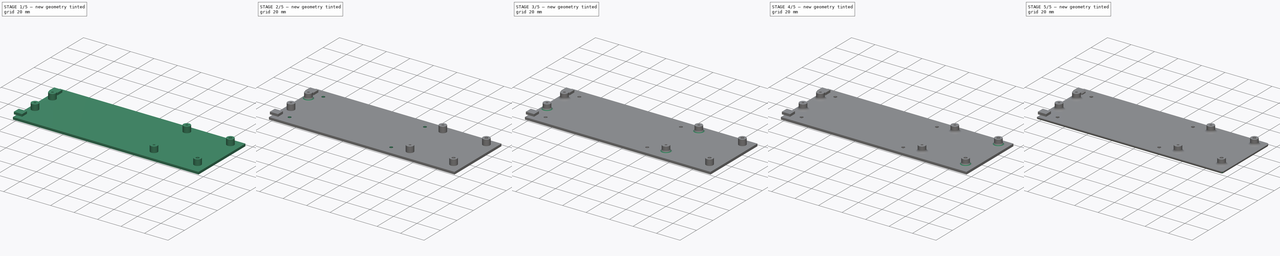
[diagram: build sequence overview — one tinted view per stage of 5, left to right]
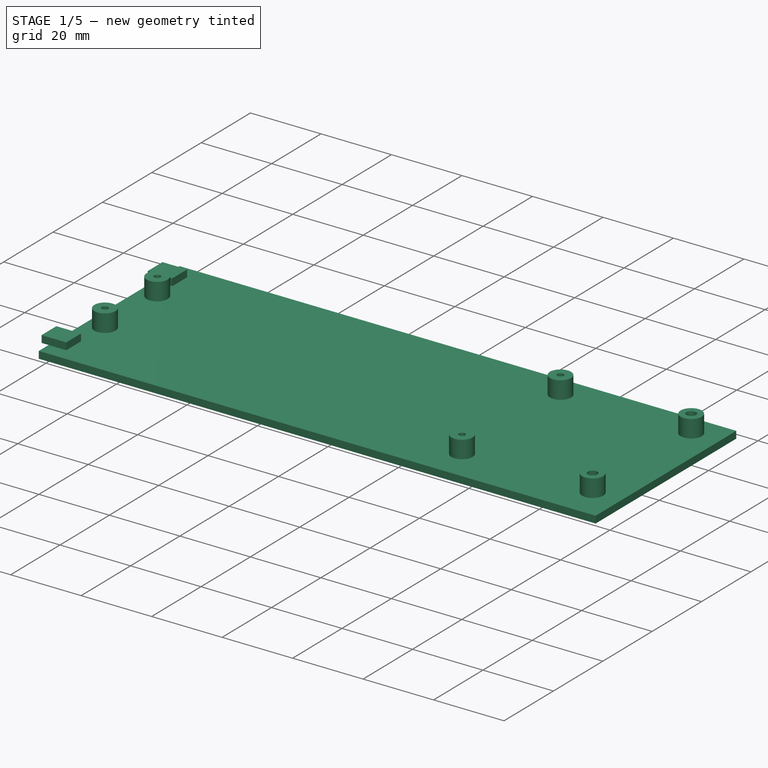
[diagram: stage 1 of 5 — iso view after this stage's code; geometry added in this stage tinted green]
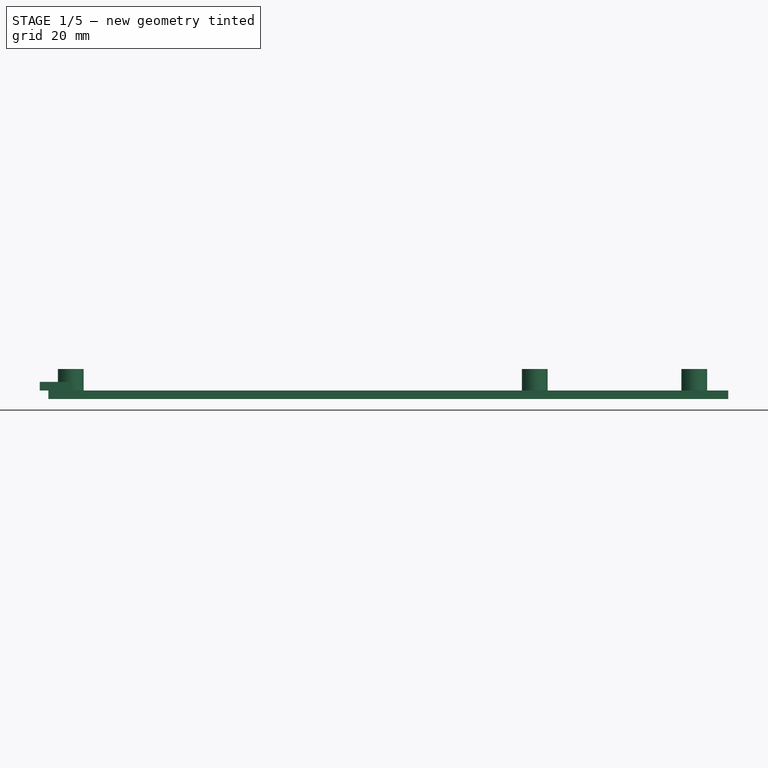
[diagram: stage 1 of 5 — front view after this stage's code; geometry added in this stage tinted green]
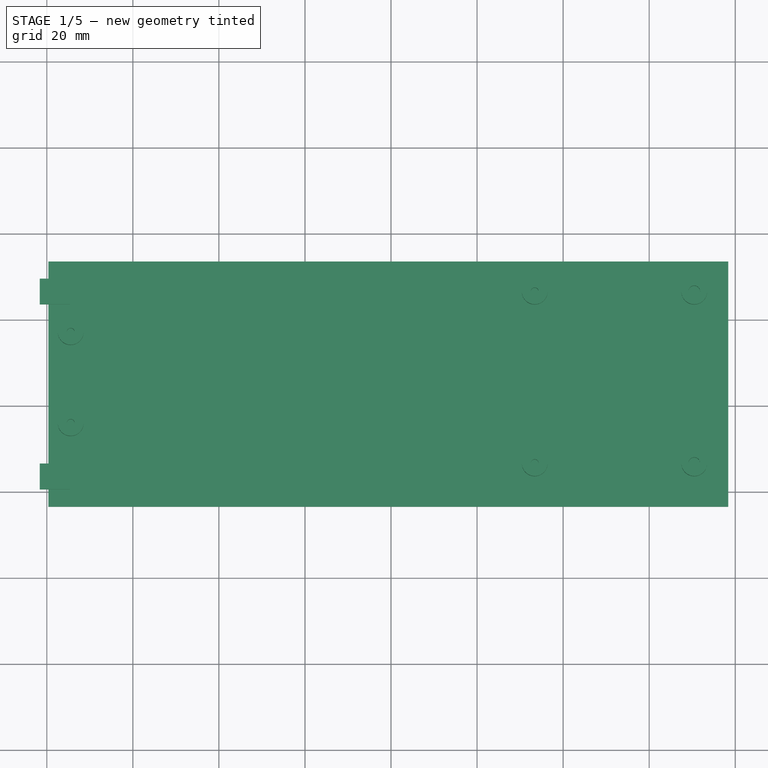
[diagram: stage 1 of 5 — top view after this stage's code; geometry added in this stage tinted green]
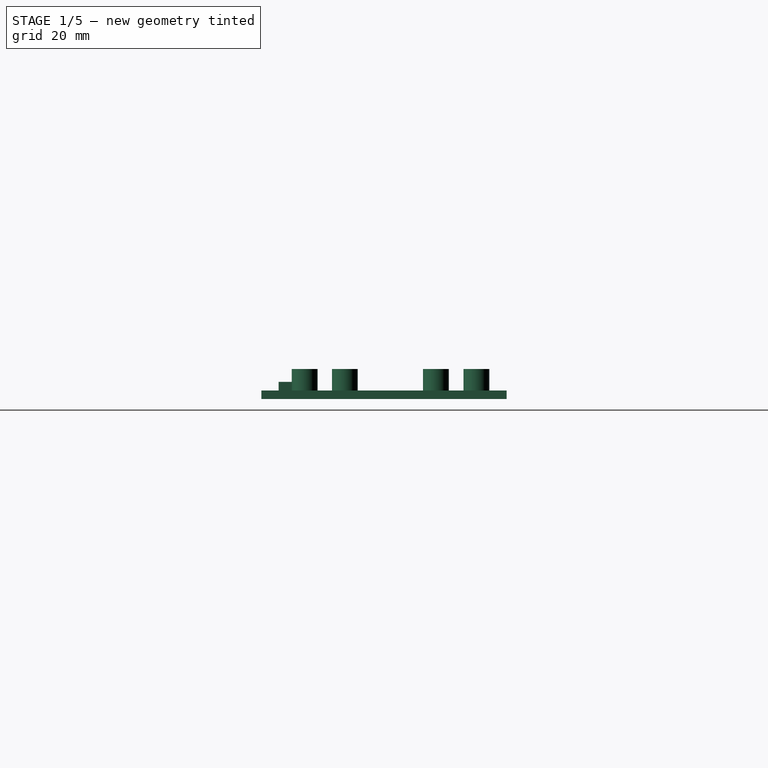
[diagram: stage 1 of 5 — right view after this stage's code; geometry added in this stage tinted green]
FCSTD DOCUMENT  (FreeCAD 0.15R4671 (Git))
Label: bottom_part
License: All rights reserved
LicenseURL: http://en.wikipedia.org/wiki/All_rights_reserved
objects: PartDesign::Fillet×8, Sketcher::SketchObject×5, PartDesign::Pad×3, PartDesign::Pocket×2, PartDesign::Chamfer×2, Part::Feature×1
note: 26 computed .brp shape members not serialized (recipe doc carries the construction recipe); baked Part::Feature solids carry a one-line shape summary decoded from their .brp

FEATURE [Sketcher::SketchObject] Sketch
  sketch-geometry (4):
    g0: LineSegment StartX=-79.6316 StartY=13.5638 StartZ=0 EndX=78.3684 EndY=13.5638 EndZ=0
    g1: LineSegment StartX=78.3684 StartY=13.5638 StartZ=0 EndX=78.3684 EndY=-43.4362 EndZ=0
    g2: LineSegment StartX=78.3684 StartY=-43.4362 StartZ=0 EndX=-79.6316 EndY=-43.4362 EndZ=0
    g3: LineSegment StartX=-79.6316 StartY=-43.4362 StartZ=0 EndX=-79.6316 EndY=13.5638 EndZ=0
  constraints (10):
    c: Coincident(g0,g1)
    c: Coincident(g1,g2)
    c: Coincident(g2,g3)
    c: Coincident(g3,g0)
    c: Horizontal(g0)
    c: Horizontal(g2)
    c: Vertical(g1)
    c: Vertical(g3)
    c: Distance(g0) = 158
    c: Distance(g3) = 57
FEATURE [PartDesign::Pad] Pad
  Length = 2
  Length2 = 100
  Sketch = -> Sketch
  Type = 0
FEATURE [Sketcher::SketchObject] Sketch001
  ExternalGeometry = -> [Pad]
  Placement = pos=(0,0,2) rot=(0,0,1;0rad)
  Support = -> Pad [Face6]
  sketch-geometry (8):
    g0: LineSegment StartX=-81.6316 StartY=9.56382 StartZ=0 EndX=-74.6316 EndY=9.56382 EndZ=0
    g1: LineSegment StartX=-74.6316 StartY=9.56382 StartZ=0 EndX=-74.6316 EndY=3.56382 EndZ=0
    g2: LineSegment StartX=-74.6316 StartY=3.56382 StartZ=0 EndX=-81.6316 EndY=3.56382 EndZ=0
    g3: LineSegment StartX=-81.6316 StartY=3.56382 StartZ=0 EndX=-81.6316 EndY=9.56382 EndZ=0
    g4: LineSegment StartX=-81.6316 StartY=-33.4362 StartZ=0 EndX=-74.6316 EndY=-33.4362 EndZ=0
    g5: LineSegment StartX=-74.6316 StartY=-33.4362 StartZ=0 EndX=-74.6316 EndY=-39.4362 EndZ=0
    g6: LineSegment StartX=-74.6316 StartY=-39.4362 StartZ=0 EndX=-81.6316 EndY=-39.4362 EndZ=0
    g7: LineSegment StartX=-81.6316 StartY=-39.4362 StartZ=0 EndX=-81.6316 EndY=-33.4362 EndZ=0
  constraints (24):
    c: Coincident(g0,g1)
    c: Coincident(g1,g2)
    c: Coincident(g2,g3)
    c: Coincident(g3,g0)
    c: Horizontal(g0)
    c: Horizontal(g2)
    c: Vertical(g1)
    c: Vertical(g3)
    c: Distance(g0) = 7
    c: DistanceX(g0,g-4) = 2
    c: DistanceY(g0,g-4) = 4
    c: Distance(g1) = 6
    c: Coincident(g4,g5)
    c: Coincident(g5,g6)
    c: Coincident(g6,g7)
    c: Coincident(g7,g4)
    c: Horizontal(g4)
    c: Horizontal(g6)
    c: Vertical(g5)
    c: Vertical(g7)
    c: Distance(g5) = 6
    c: Distance(g4) = 7
    c: DistanceX(g6,g-5) = 2
    c: DistanceY(g6,g-5) = -4
FEATURE [PartDesign::Pad] Pad001
  Length = 2
  Length2 = 100
  Sketch = -> Sketch001
  Type = 0
FEATURE [Sketcher::SketchObject] Sketch002
  ExternalGeometry = -> [Pad001]
  Placement = pos=(0,0,2) rot=(0,0,1;0rad)
  Support = -> Pad001 [Face5]
  sketch-geometry (12):
    g0: Circle CenterX=70.4784 CenterY=6.54882 CenterZ=0 NormalX=0 NormalY=0 NormalZ=1 Radius=1.35
    g1: Circle CenterX=70.4784 CenterY=-33.3712 CenterZ=0 NormalX=0 NormalY=0 NormalZ=1 Radius=1.35
    g2: Circle CenterX=33.3984 CenterY=6.54882 CenterZ=0 NormalX=0 NormalY=0 NormalZ=1 Radius=0.9
    g3: Circle CenterX=33.3984 CenterY=-33.3712 CenterZ=0 NormalX=0 NormalY=0 NormalZ=1 Radius=0.9
    g4: Circle CenterX=70.4784 CenterY=6.54882 CenterZ=0 NormalX=0 NormalY=0 NormalZ=1 Radius=3
    g5: Circle CenterX=33.3984 CenterY=6.54882 CenterZ=0 NormalX=0 NormalY=0 NormalZ=1 Radius=3
    g6: Circle CenterX=33.3984 CenterY=-33.3712 CenterZ=0 NormalX=0 NormalY=0 NormalZ=1 Radius=3
    g7: Circle CenterX=70.4784 CenterY=-33.3712 CenterZ=0 NormalX=0 NormalY=0 NormalZ=1 Radius=3
    g8: Circle CenterX=-74.4416 CenterY=-2.86118 CenterZ=0 NormalX=0 NormalY=0 NormalZ=1 Radius=0.9
    g9: Circle CenterX=-74.4416 CenterY=-24.0312 CenterZ=0 NormalX=0 NormalY=0 NormalZ=1 Radius=0.9
    g10: Circle CenterX=-74.4416 CenterY=-2.86118 CenterZ=0 NormalX=0 NormalY=0 NormalZ=1 Radius=3
    g11: Circle CenterX=-74.4416 CenterY=-24.0312 CenterZ=0 NormalX=0 NormalY=0 NormalZ=1 Radius=3
  constraints (30):
    c: DistanceY(g0,g-4) = 7.015
    c: DistanceX(g0,g-4) = 7.89
    c: DistanceX(g1,g-5) = 7.89
    c: Radius(g0) = 1.35
    c: Radius(g1) = 1.35
    c: DistanceY(g2,g-4) = 7.015
    c: DistanceX(g2,g0) = 37.08
    c: Radius(g2) = 0.9
    c: DistanceX(g3,g1) = 37.08
    c: Radius(g3) = 0.9
    c: DistanceY(g0,g1) = -39.92
    c: DistanceY(g3,g1) = 0
    c: Coincident(g4,g0)
    c: Radius(g4) = 3
    c: Coincident(g5,g2)
    c: Radius(g5) = 3
    c: Coincident(g6,g3)
    c: Radius(g6) = 3
    c: Coincident(g7,g1)
    c: Radius(g7) = 3
    c: DistanceY(g-3,g8) = -16.425
    c: DistanceX(g8,g-3) = -5.19
    c: Radius(g8) = 0.9
    c: DistanceY(g9,g8) = 21.17
    c: DistanceX(g9,g8) = 0
    c: Radius(g9) = 0.9
    c: Coincident(g10,g8)
    c: Radius(g10) = 3
    c: Coincident(g11,g9)
    c: Radius(g11) = 3
FEATURE [PartDesign::Pad] Pad002
  Length = 5
  Length2 = 100
  Sketch = -> Sketch002
  Type = 0
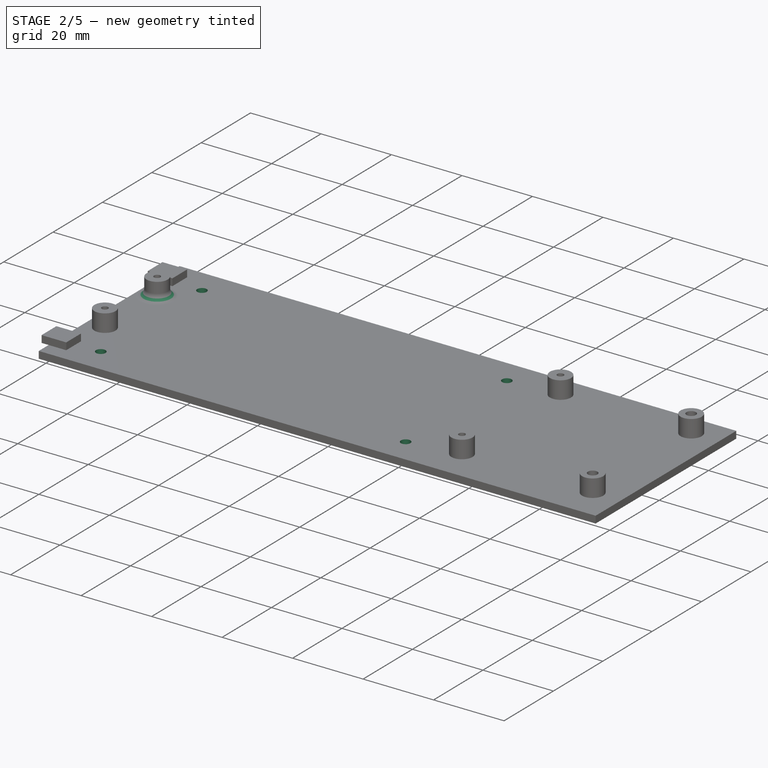
[diagram: stage 2 of 5 — iso view after this stage's code; geometry added in this stage tinted green]
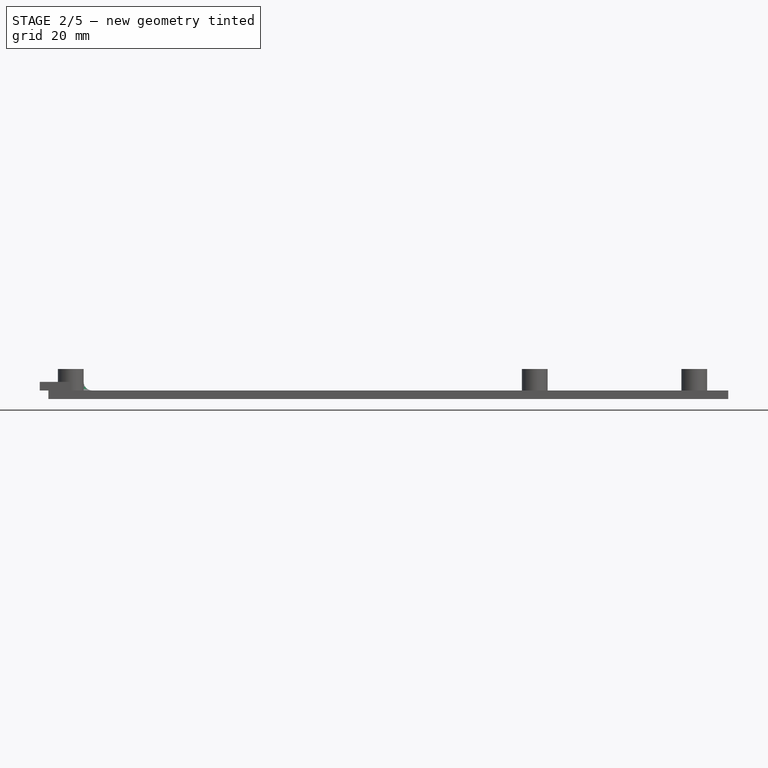
[diagram: stage 2 of 5 — front view after this stage's code; geometry added in this stage tinted green]
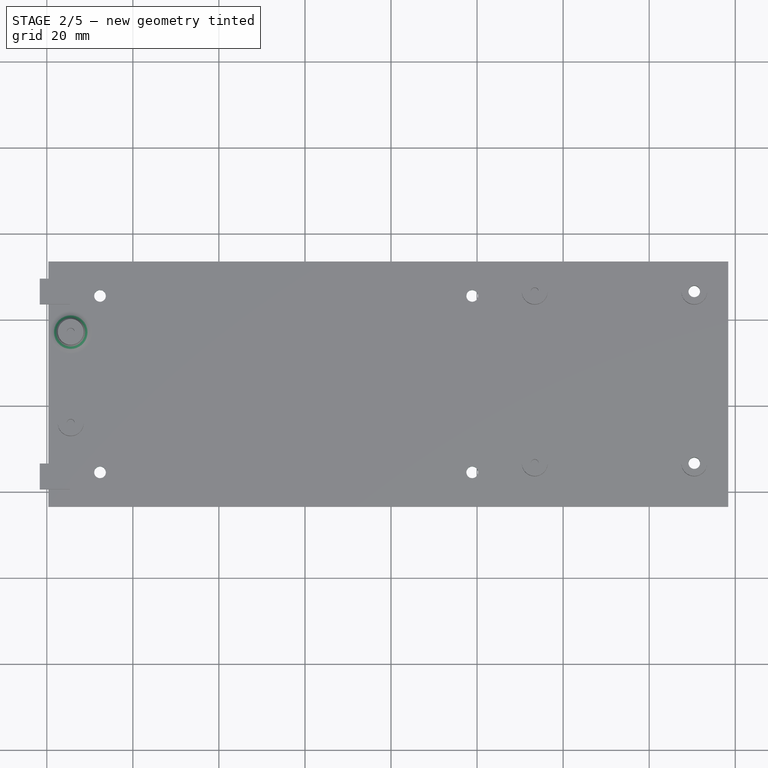
[diagram: stage 2 of 5 — top view after this stage's code; geometry added in this stage tinted green]
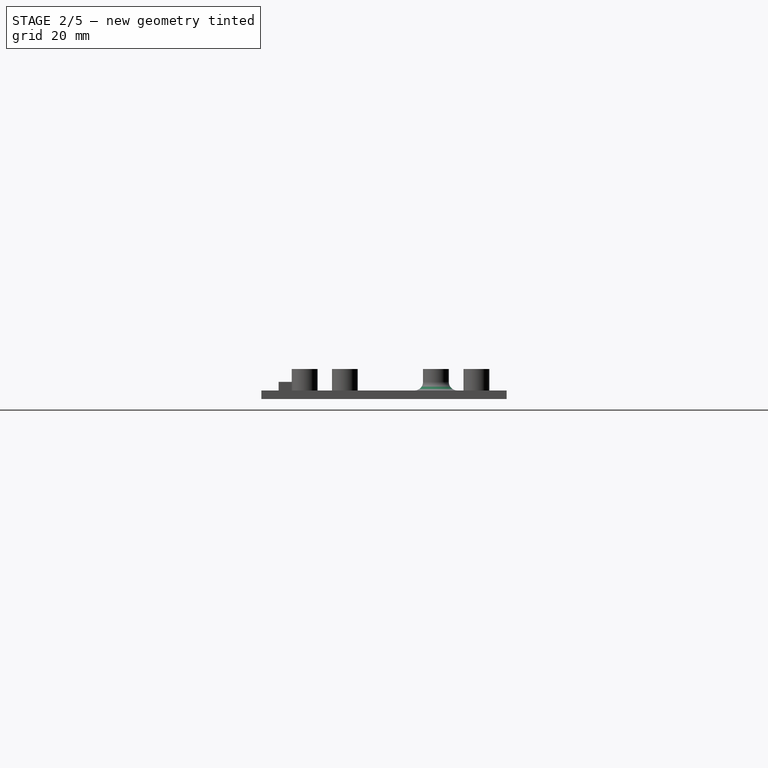
[diagram: stage 2 of 5 — right view after this stage's code; geometry added in this stage tinted green]
FEATURE [Sketcher::SketchObject] Sketch003
  ExternalGeometry = -> [Pad002]
  Placement = pos=(0,0,2) rot=(0,0,1;0rad)
  Support = -> Pad002 [Face5]
  sketch-geometry (4):
    g0: Circle CenterX=-67.6316 CenterY=5.56382 CenterZ=0 NormalX=0 NormalY=0 NormalZ=1 Radius=1.35
    g1: Circle CenterX=18.8684 CenterY=5.56382 CenterZ=0 NormalX=0 NormalY=0 NormalZ=1 Radius=1.35
    g2: Circle CenterX=-67.6316 CenterY=-35.4362 CenterZ=0 NormalX=0 NormalY=0 NormalZ=1 Radius=1.35
    g3: Circle CenterX=18.8684 CenterY=-35.4362 CenterZ=0 NormalX=0 NormalY=0 NormalZ=1 Radius=1.35
  constraints (12):
    c: DistanceX(g0,g-8) = -12
    c: DistanceY(g0,g-8) = 8
    c: Radius(g0) = 1.35
    c: DistanceX(g1,g0) = -86.5
    c: DistanceY(g1,g0) = 0
    c: Radius(g1) = 1.35
    c: DistanceX(g2,g-7) = -12
    c: DistanceY(g2,g-7) = -8
    c: Radius(g2) = 1.35
    c: DistanceX(g3,g2) = -86.5
    c: DistanceY(g3,g2) = 0
    c: Radius(g3) = 1.35
FEATURE [PartDesign::Pocket] Pocket
  Length = 5
  Sketch = -> Sketch003
  Type = 0
FEATURE [Sketcher::SketchObject] Sketch004
  ExternalGeometry = -> [Pocket]
  Placement = pos=(0,0,0) rot=(1,0,0;3.14159rad)
  Support = -> Pocket [Face4]
  sketch-geometry (2):
    g0: Circle CenterX=70.4784 CenterY=33.3712 CenterZ=0 NormalX=0 NormalY=0 NormalZ=1 Radius=1.35
    g1: Circle CenterX=70.4784 CenterY=-6.54882 CenterZ=0 NormalX=0 NormalY=0 NormalZ=1 Radius=1.35
  constraints (6):
    c: DistanceX(g0,g-4) = 7.89
    c: Radius(g0) = 1.35
    c: DistanceY(g1,g0) = 39.92
    c: DistanceX(g1,g0) = 0
    c: Radius(g1) = 1.35
    c: DistanceY(g1,g-5) = -7.015
FEATURE [PartDesign::Pocket] Pocket001
  Length = 5
  Sketch = -> Sketch004
  Type = 0
FEATURE [PartDesign::Fillet] Fillet
  Base = -> Pocket001 [Edge37]
  Radius = 2
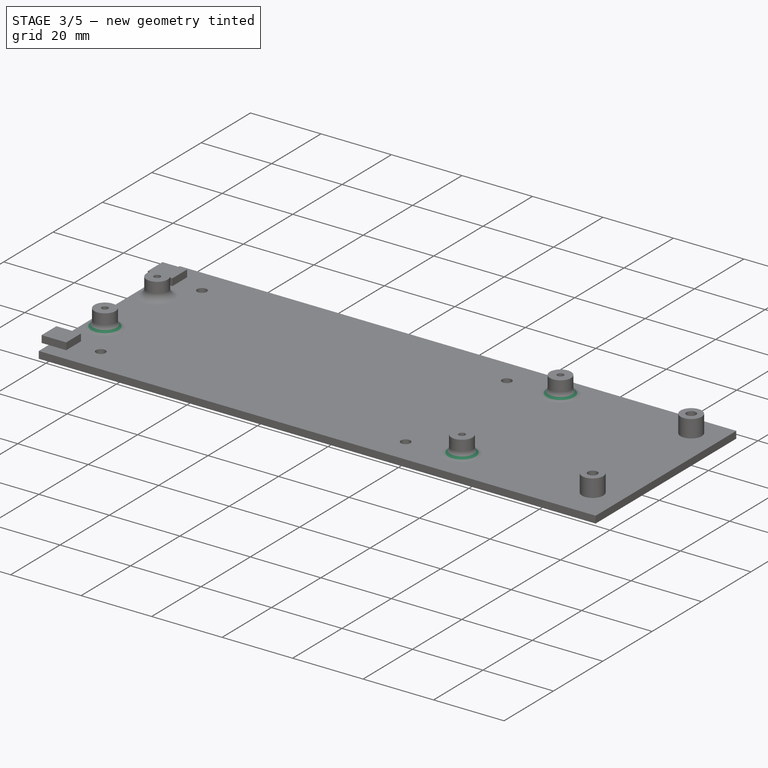
[diagram: stage 3 of 5 — iso view after this stage's code; geometry added in this stage tinted green]
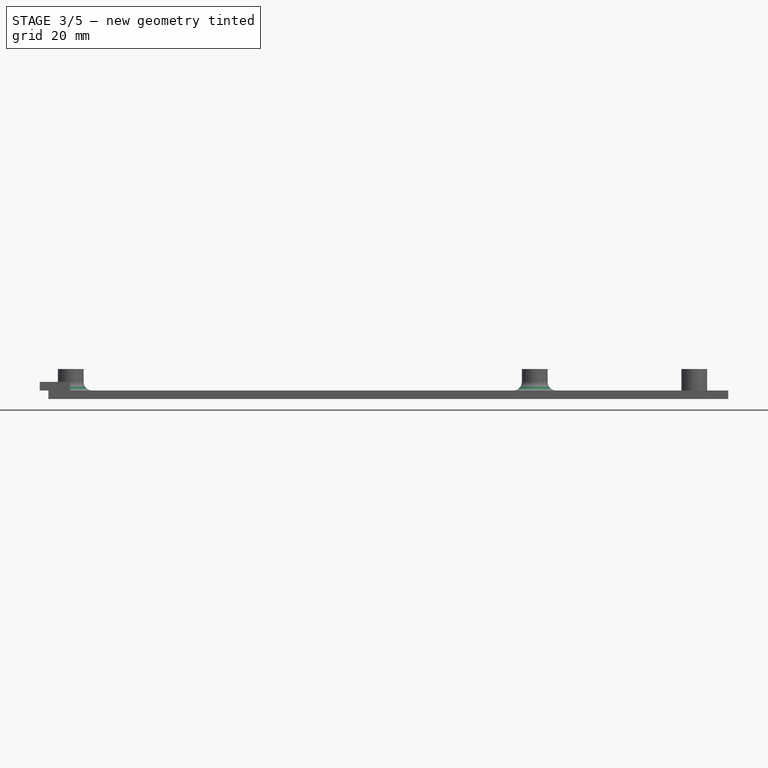
[diagram: stage 3 of 5 — front view after this stage's code; geometry added in this stage tinted green]
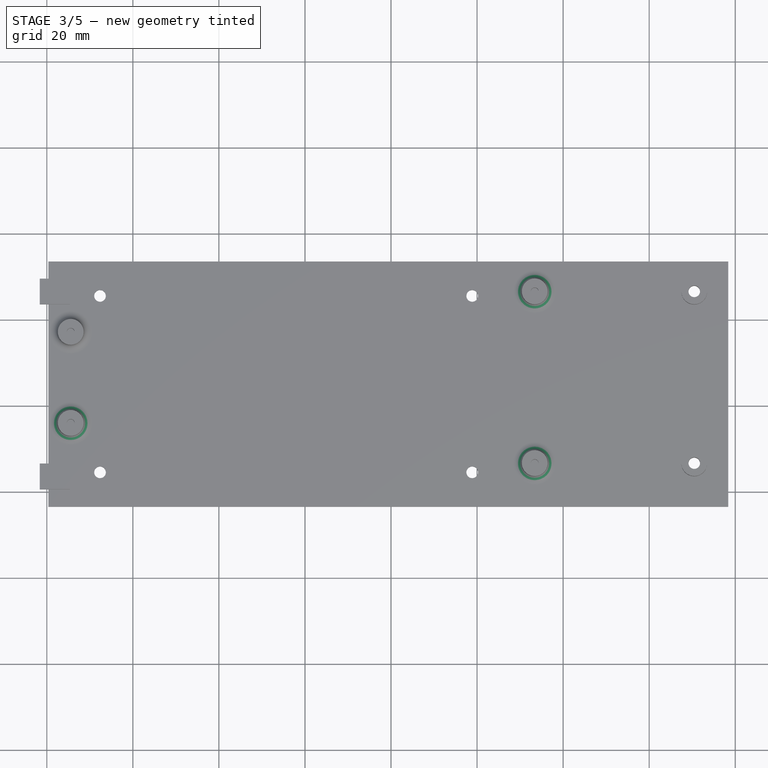
[diagram: stage 3 of 5 — top view after this stage's code; geometry added in this stage tinted green]
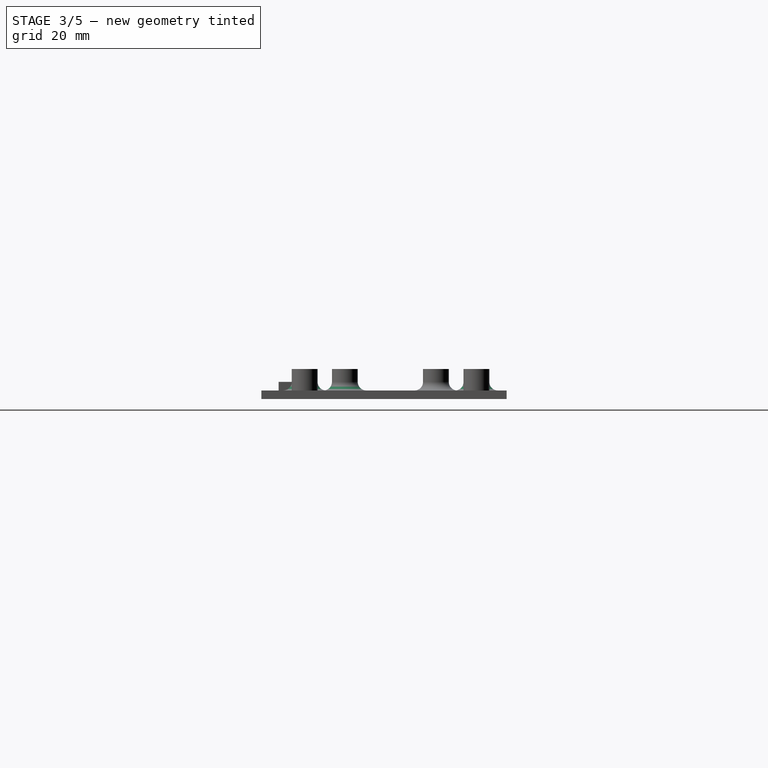
[diagram: stage 3 of 5 — right view after this stage's code; geometry added in this stage tinted green]
FEATURE [PartDesign::Fillet] Fillet001
  Base = -> Fillet [Edge22]
  Radius = 2
FEATURE [PartDesign::Fillet] Fillet002
  Base = -> Fillet001 [Edge19]
  Radius = 2
FEATURE [PartDesign::Fillet] Fillet003
  Base = -> Fillet002 [Edge19]
  Radius = 2
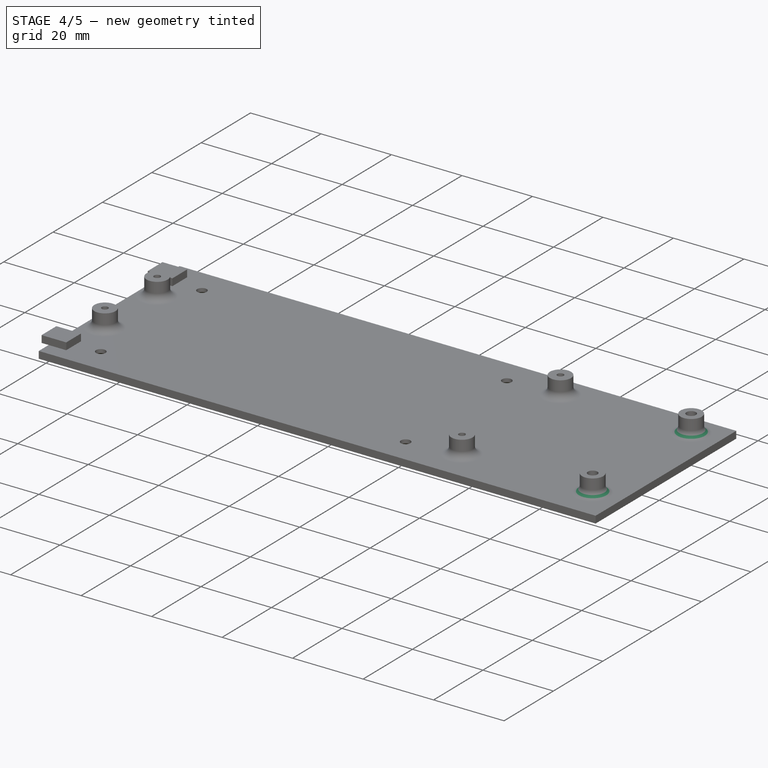
[diagram: stage 4 of 5 — iso view after this stage's code; geometry added in this stage tinted green]
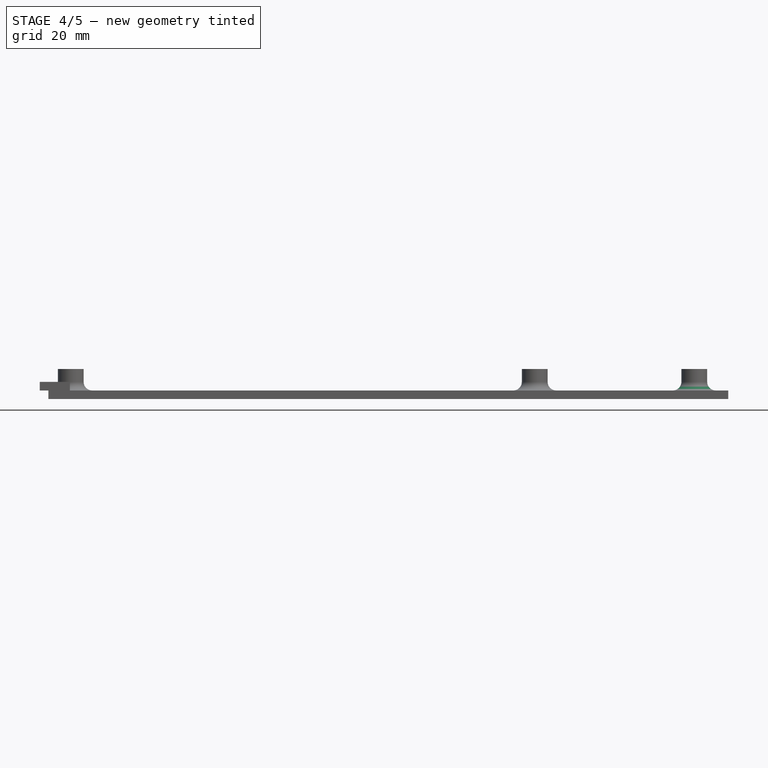
[diagram: stage 4 of 5 — front view after this stage's code; geometry added in this stage tinted green]
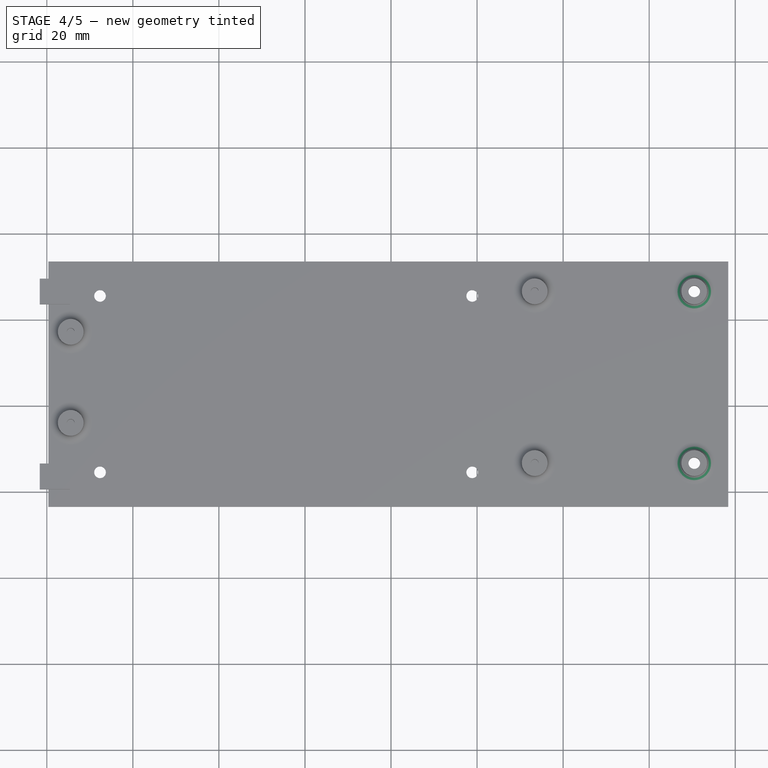
[diagram: stage 4 of 5 — top view after this stage's code; geometry added in this stage tinted green]
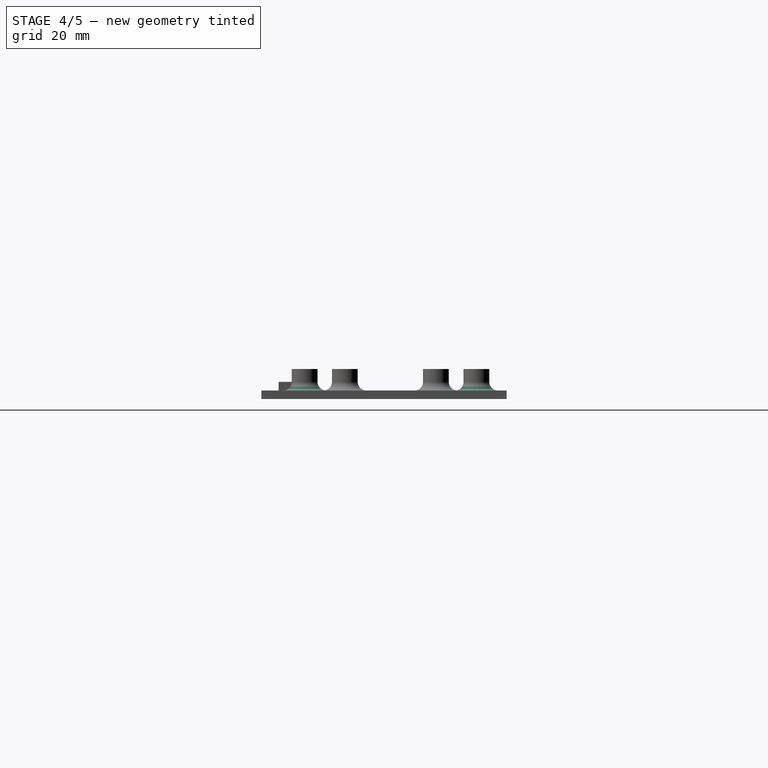
[diagram: stage 4 of 5 — right view after this stage's code; geometry added in this stage tinted green]
FEATURE [PartDesign::Fillet] Fillet004
  Base = -> Fillet003 [Edge18]
  Radius = 2
FEATURE [PartDesign::Fillet] Fillet005
  Base = -> Fillet004 [Edge18]
  Radius = 2
FEATURE [PartDesign::Chamfer] Chamfer
  Base = -> Fillet005 [Edge84,Edge83,Edge66,Edge64,Edge68,Edge70]
  Size = 1
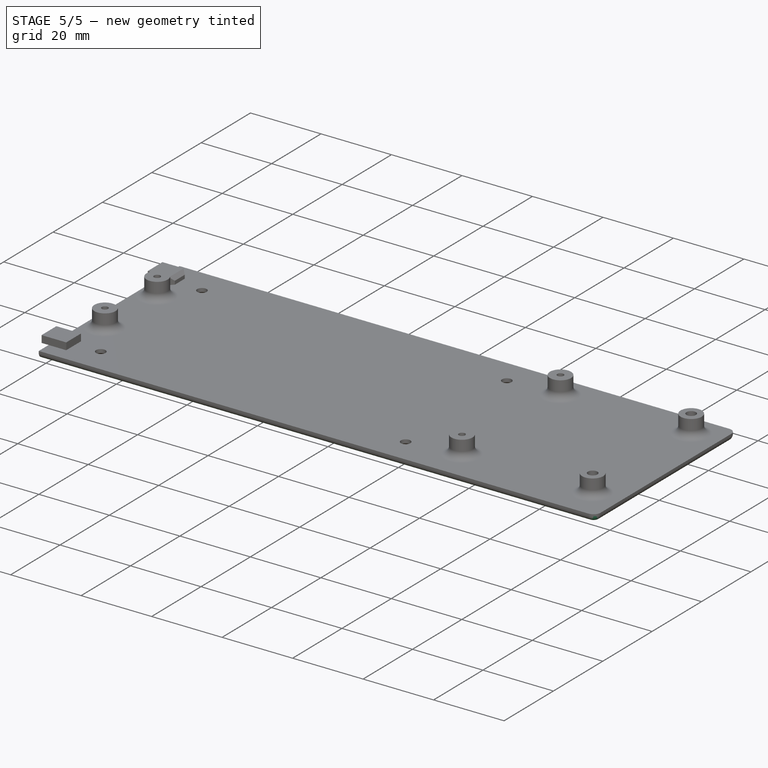
[diagram: stage 5 of 5 — iso view after this stage's code; geometry added in this stage tinted green]
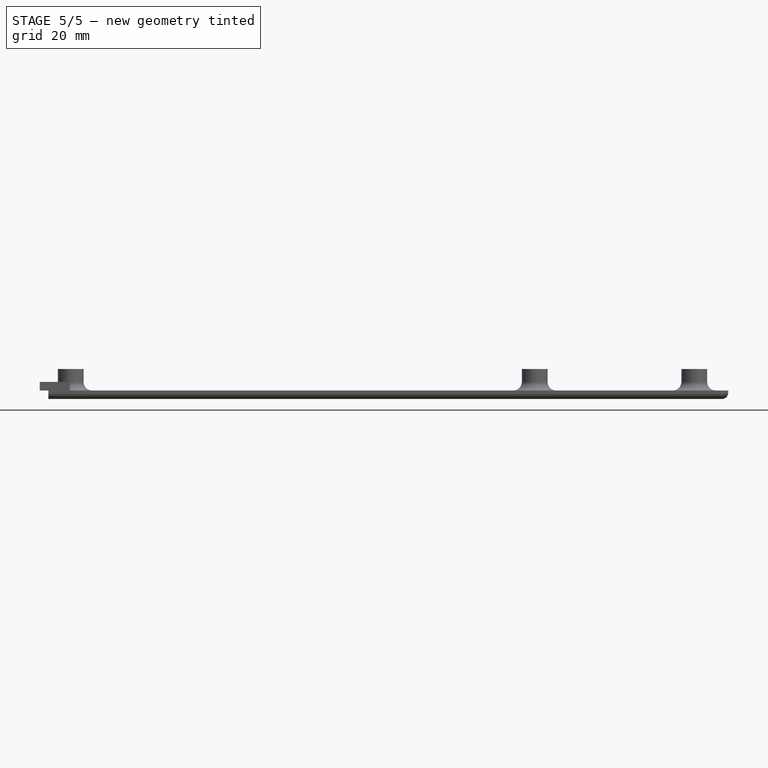
[diagram: stage 5 of 5 — front view after this stage's code; geometry added in this stage tinted green]
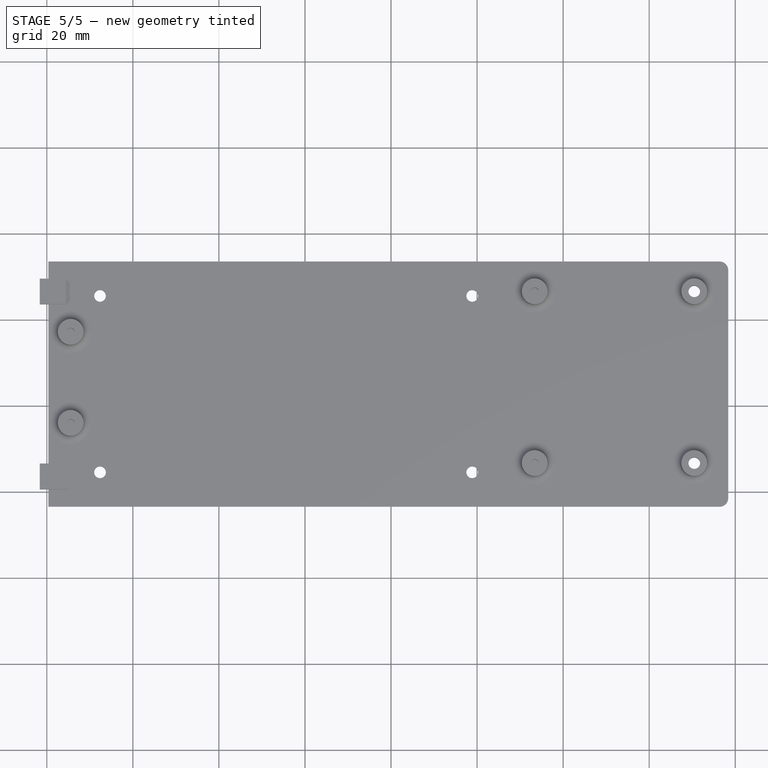
[diagram: stage 5 of 5 — top view after this stage's code; geometry added in this stage tinted green]
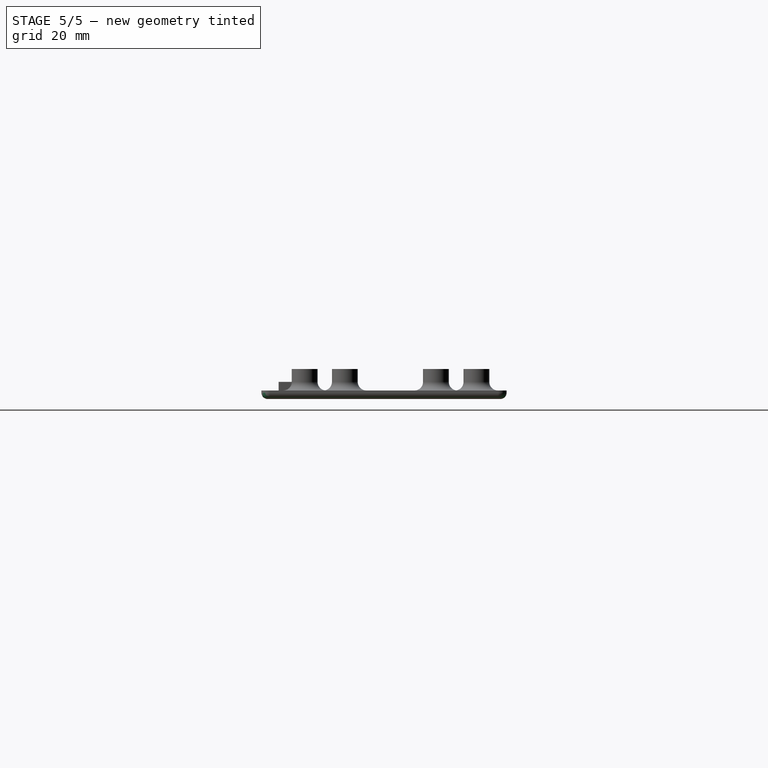
[diagram: stage 5 of 5 — right view after this stage's code; geometry added in this stage tinted green]
FEATURE [PartDesign::Chamfer] Chamfer001
  Base = -> Chamfer [Edge59,Edge57,Edge58]
  Size = 1
FEATURE [PartDesign::Fillet] Fillet006
  Base = -> Chamfer001 [Edge42,Edge38]
  Radius = 2
FEATURE [PartDesign::Fillet] Fillet007
  Base = -> Fillet006 [Edge36]
  Radius = 1.5
FEATURE [Part::Feature] Fillet007_solid  label="Fillet007 (Solid)"
  shape: bbox 160 x 57 x 7 mm, 70 faces (baked)
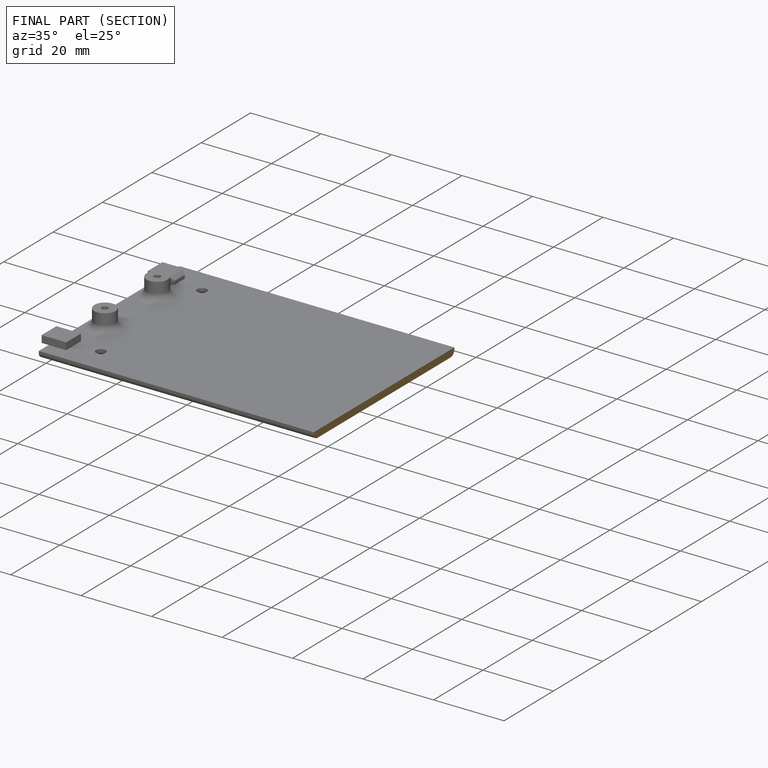
[diagram: finished part — half-section view (interior)]
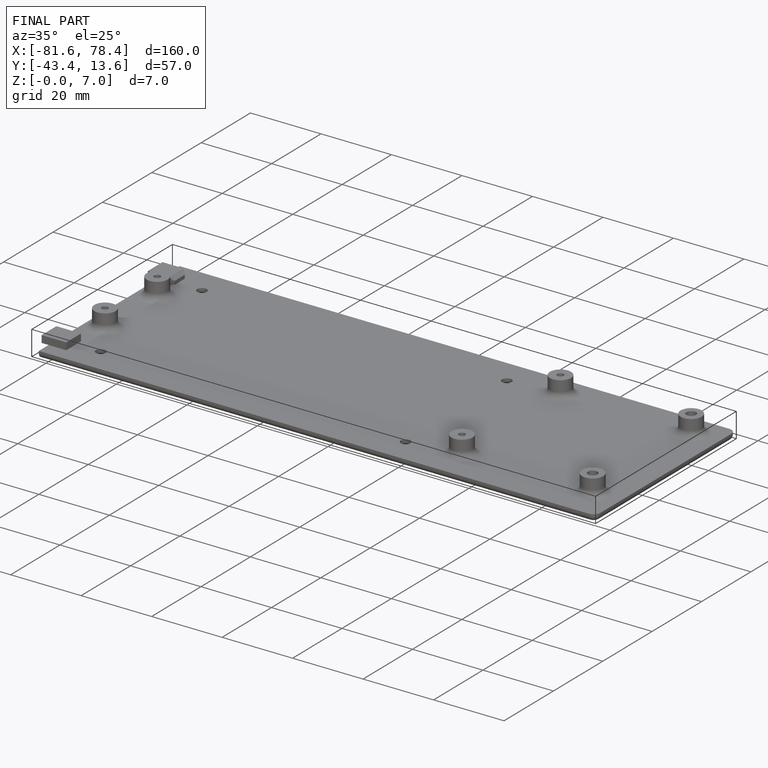
[diagram: finished part — iso view with bounding-box wireframe]
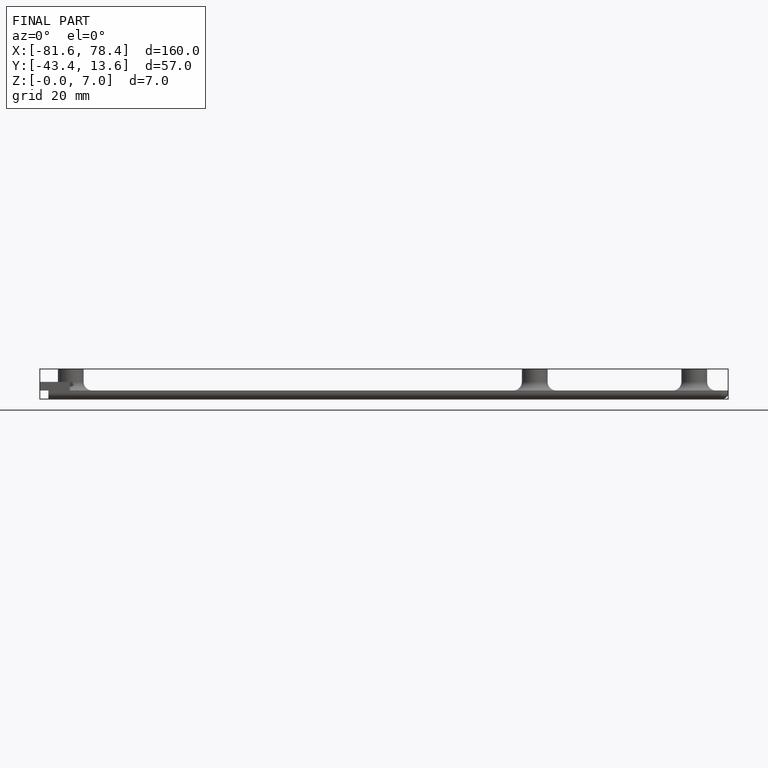
[diagram: finished part — front view with bounding-box wireframe]
